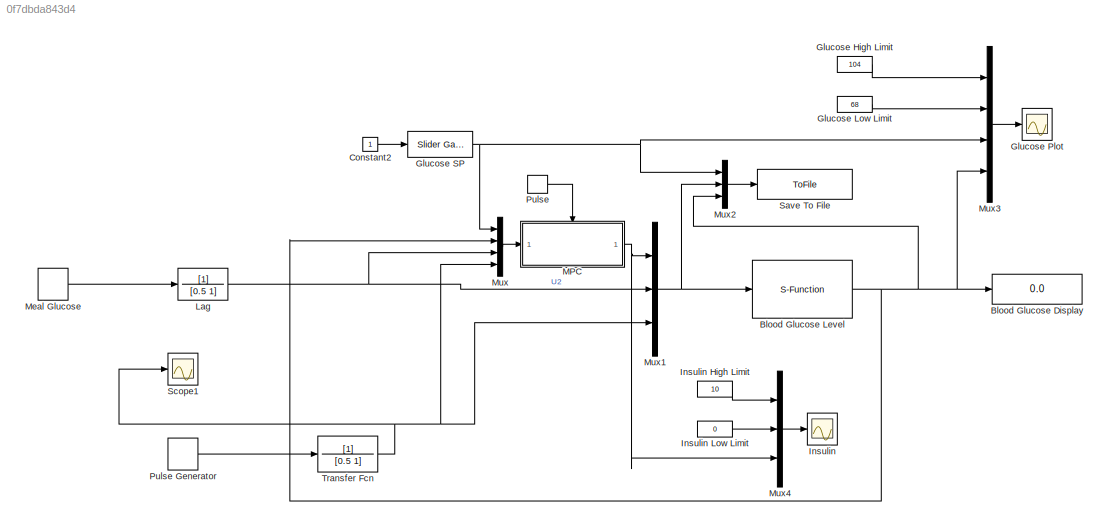
MODEL slx_0f7dbda843d4
KIND model
CONFIG AbsTol = auto
CONFIG EnableMultiTasking = on
CONFIG FixedStep = auto
CONFIG MaxStep = auto
CONFIG MinStep = auto
CONFIG RelTol = 1e-3
CONFIG SampleTimeConstraint = Unconstrained
CONFIG Solver = ode45
CONFIG SolverName = ode45
CONFIG StartTime = 0.0
CONFIG StopFcn = plot_results
CONFIG StopTime = 24
BLOCK [Display] Blood Glucose Display
  Decimation = 1
  Ports = [1]
BLOCK [S-Function] Blood Glucose Level
  EnableBusSupport = off
  FunctionName = diabetic
  Ports = [1, 1]
  SFcnIsStateOwnerBlock = off
  SFunctionDeploymentMode = off
BLOCK [Constant] Constant2
BLOCK [Constant] Glucose High Limit
  Value = 104
BLOCK [Constant] Glucose Low Limit
  Value = 68
BLOCK [Scope] Glucose Plot
  Floating = off
  NumInputPorts = 1
  Ports = [1]
  ScopeSpecificationString = Simulink.scopes.TimeScopeBlockCfg('CurrentConfiguration', extmgr.ConfigurationSet(extmgr.Configuration('Core','General UI',true,'FigureColor',[1 1 1]),extmgr.Configuration('Core','Source UI',true),extmgr.Configuration('Sources','WiredSimulink',true,'DataLoggingVariableName','ScopeData1','DataLoggingSaveFormat','StructureWithTime','DataLoggingMaxPoints','30000','DataLoggingLimitDataPoints',true,'Da...<+2818ch>
BLOCK [Reference] Glucose SP  REF=simulink/Math
Operations/Slider
Gain
  Ports = [1, 1]
  SourceBlock = simulink/Math\nOperations/Slider\nGain
  SourceProductBaseCode = SL
  SourceProductName = Simulink
  SourceType = Slider Gain
BLOCK [Scope] Insulin
  Floating = off
  NumInputPorts = 1
  Ports = [1]
  ScopeSpecificationString = C++SS(StrPVP('Location','[11, 489, 620, 810]'),StrPVP('Open','off'),StrPVP('ZoomMode','yonly'),MxPVP('AxesTitles',53,'struct(''axes1'',''%<SignalLabel>'')'),MxPVP('ScopeGraphics',56,'struct(''FigureColor'',''[1 1 1]'',''AxesColor'',''[1 1 1]'',''AxesTickColor'',''[0 0 0]'',''LineColors'',''[1 0 0;0 0 1;0 0 0;0 1 0;0 1 0;0 0 1]'',''LineStyles'',''-|-|-|-|-|-'',''LineWidths'',''[6 6 3 3 0.5 0.5]'','...<+346ch>
BLOCK [Constant] Insulin High Limit
  Value = 10
BLOCK [Constant] Insulin Low Limit
  Value = 0
BLOCK [TransferFcn] Lag
  Denominator = [0.5 1]
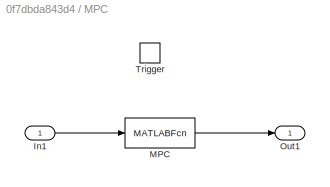
BLOCK [SubSystem] MPC
  Ports = [1, 1, 0, 1]
  RequestExecContextInheritance = off
  TreatAsAtomicUnit = on
BLOCK [Inport] MPC/In1
  IconDisplay = Port number
BLOCK [MATLABFcn] MPC/MPC
  MATLABFcn = mpc2
  Ports = [1, 1]
BLOCK [Outport] MPC/Out1
  IconDisplay = Port number
BLOCK [TriggerPort] MPC/Trigger
  Ports = []
  StatesWhenEnabling = held
  VariantControl = (inherit)
BLOCK [DiscretePulseGenerator] Meal Glucose
  Amplitude = 100
  Period = 6
  PhaseDelay = 7
  Ports = [0, 1]
  PulseType = Time based
  PulseWidth = 10
BLOCK [Mux] Mux
  DisplayOption = bar
  Ports = [4, 1]
BLOCK [Mux] Mux1
  DisplayOption = bar
  Inputs = 3
  Ports = [3, 1]
BLOCK [Mux] Mux2
  DisplayOption = bar
  Inputs = 3
  Ports = [3, 1]
BLOCK [Mux] Mux3
  DisplayOption = bar
  Ports = [4, 1]
BLOCK [Mux] Mux4
  DisplayOption = bar
  Inputs = 3
  Ports = [3, 1]
BLOCK [DiscretePulseGenerator] Pulse
  Period = 0.2
  Ports = [0, 1]
  PulseType = Time based
  PulseWidth = 5
BLOCK [DiscretePulseGenerator] Pulse Generator
  Amplitude = 50
  Period = 24
  PhaseDelay = 5
  Ports = [0, 1]
  PulseType = Time based
  PulseWidth = 6
BLOCK [ToFile] Save To File
  Filename = data.mat
  MatrixName = diabetic
  Ports = [1]
  SampleTime = 0.05
BLOCK [Scope] Scope1
  Floating = off
  NumInputPorts = 1
  Ports = [1]
  ScopeSpecificationString = Simulink.scopes.TimeScopeBlockCfg('CurrentConfiguration', extmgr.ConfigurationSet(extmgr.Configuration('Core','General UI',true),extmgr.Configuration('Core','Source UI',true),extmgr.Configuration('Sources','WiredSimulink',true,'DataLoggingVariableName','ScopeData1'),extmgr.Configuration('Visuals','Time Domain',true,'SerializedDisplays',{struct('MinYLimReal','-6.25','MaxYLimReal','56.25','YLabelRea...<+1418ch>
BLOCK [TransferFcn] Transfer Fcn
  Denominator = [0.5 1]
NET Blood Glucose Level:1 -> Blood Glucose Display:1, Mux2:3, Mux3:4, Mux:2
LINE Constant2:1 -> Glucose SP:1
LINE Glucose High Limit:1 -> Mux3:1
LINE Glucose Low Limit:1 -> Mux3:2
NET Glucose SP:1 -> Mux2:1, Mux3:3, Mux:1
LINE Insulin High Limit:1 -> Mux4:1
LINE Insulin Low Limit:1 -> Mux4:2
NET Lag:1 -> Mux1:2, Mux:3
LINE MPC/In1:1 -> MPC/MPC:1
LINE MPC/MPC:1 -> MPC/Out1:1
NET MPC:1 -> Mux1:1, Mux4:3
LINE Meal Glucose:1 -> Lag:1
NET Mux1:1 -> Blood Glucose Level:1, Mux2:2
LINE Mux2:1 -> Save To File:1
LINE Mux3:1 -> Glucose Plot:1
LINE Mux4:1 -> Insulin:1
LINE Mux:1 -> MPC:1
LINE Pulse Generator:1 -> Transfer Fcn:1
LINE Pulse:1 -> MPC:trigger
NET Transfer Fcn:1 -> Mux1:3, Mux:4, Scope1:1
note: NET lines group one-source signal fan-out (src -> all destinations, sorted); 1:1 wires keep LINE
